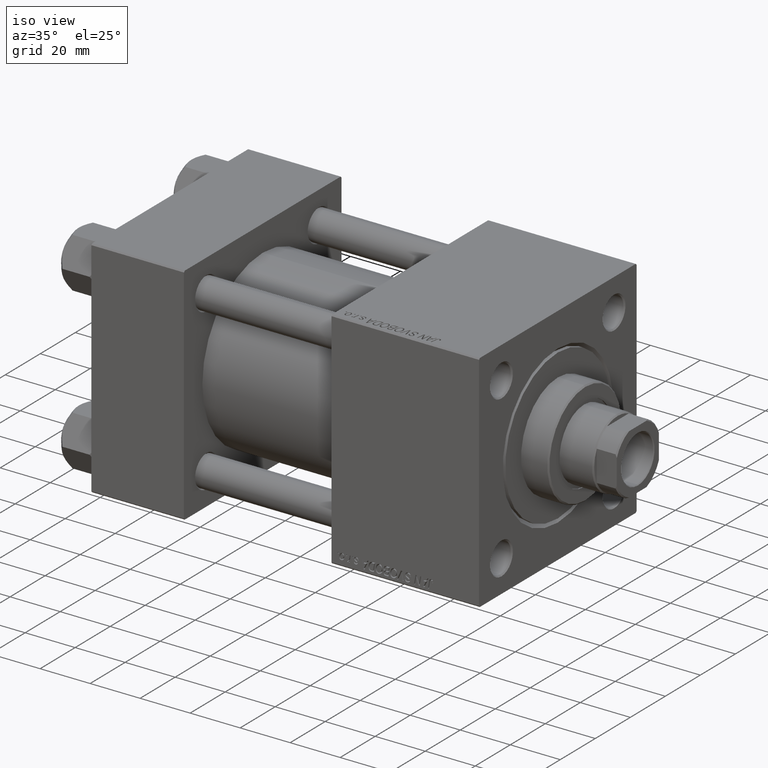
[diagram: clean part render]
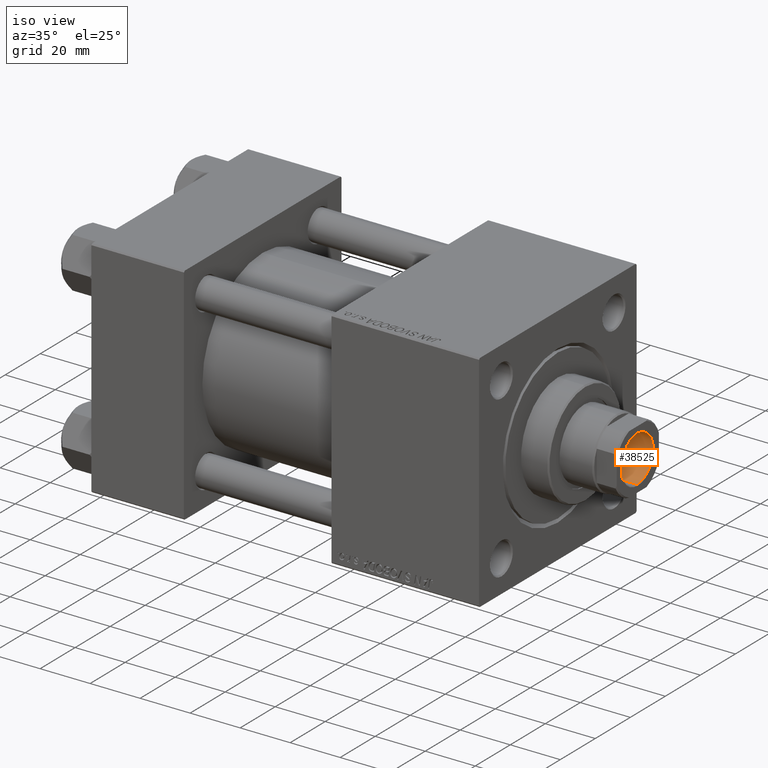
[diagram: same view with one face highlighted and labeled with its STEP entity id]
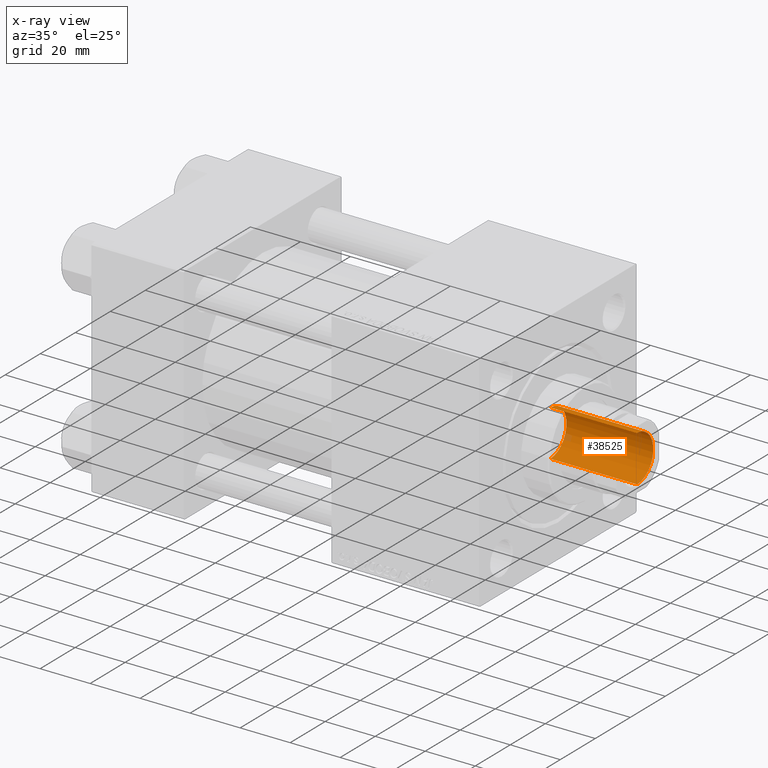
[diagram: x-ray of the same camera — body ghosted, the highlighted face saturated]
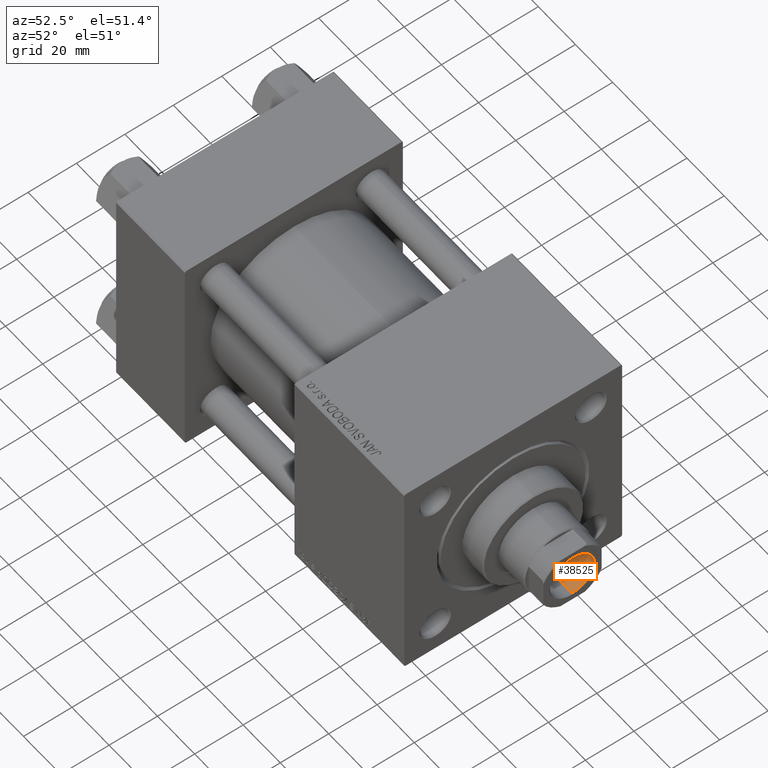
[diagram: same view with one face highlighted and labeled with its STEP entity id]
A machine part, iso view. The second image highlights one B-rep face of the part: STEP entity #38525.
The next image is the same camera in x-ray: the body ghosted, the highlighted face saturated — about 1% of this face is hidden behind the body in this view.
A second angle (auxiliary view) of the same face is appended — the face is thin or edge-on in the first view.
In plain terms, the highlighted cylindrical surface (edge-blend (fillet) strip) has radius 9.25 mm, axis along (1, 0, -0).
Its self-contained STEP definition (entity closure, byte-faithful):
#1903 = DIRECTION ( 'NONE',  ( 1.000000000000000000, 0.000000000000000000, 0.000000000000000000 ) ) ;
#4233 = CIRCLE ( 'NONE', #4355, 9.249999999999996447 ) ;
#4355 = AXIS2_PLACEMENT_3D ( 'NONE', #28843, #35483, #41276 ) ;
#4990 = DIRECTION ( 'NONE',  ( -0.000000000000000000, -0.000000000000000000, 1.000000000000000000 ) ) ;
#5170 = DIRECTION ( 'NONE',  ( -0.000000000000000000, -0.000000000000000000, 1.000000000000000000 ) ) ;
#7055 = VECTOR ( 'NONE', #4990, 1000.000000000000000 ) ;
#7157 = EDGE_CURVE ( 'NONE', #30412, #34028, #4233, .T. ) ;
#9472 = LINE ( 'NONE', #12791, #39979 ) ;
#11913 = AXIS2_PLACEMENT_3D ( 'NONE', #13345, #39773, #1903 ) ;
#12616 = EDGE_LOOP ( 'NONE', ( #24326, #13171, #29431, #42647 ) ) ;
#12791 = CARTESIAN_POINT ( 'NONE',  ( -9.249999999999996447, 1.132798289211301304E-15, 150.0000000000000000 ) ) ;
#13171 = ORIENTED_EDGE ( 'NONE', *, *, #25628, .T. ) ;
#13345 = CARTESIAN_POINT ( 'NONE',  ( 0.000000000000000000, 0.000000000000000000, 150.0000000000000000 ) ) ;
#18823 = DIRECTION ( 'NONE',  ( 1.000000000000000000, 0.000000000000000000, 0.000000000000000000 ) ) ;
#20453 = FACE_OUTER_BOUND ( 'NONE', #12616, .T. ) ;
#22390 = CARTESIAN_POINT ( 'NONE',  ( 0.000000000000000000, 0.000000000000000000, 114.9999999999999858 ) ) ;
#24326 = ORIENTED_EDGE ( 'NONE', *, *, #46726, .F. ) ;
#25568 = CARTESIAN_POINT ( 'NONE',  ( -9.249999999999996447, 1.132798289211301304E-15, 149.6999999999999886 ) ) ;
#25628 = EDGE_CURVE ( 'NONE', #39069, #30412, #9472, .T. ) ;
#27345 = LINE ( 'NONE', #46673, #7055 ) ;
#28843 = CARTESIAN_POINT ( 'NONE',  ( 0.000000000000000000, 0.000000000000000000, 149.6999999999999886 ) ) ;
#29295 = CARTESIAN_POINT ( 'NONE',  ( 9.249999999999994671, 0.000000000000000000, 114.9999999999999858 ) ) ;
#29431 = ORIENTED_EDGE ( 'NONE', *, *, #7157, .T. ) ;
#30412 = VERTEX_POINT ( 'NONE', #25568 ) ;
#34028 = VERTEX_POINT ( 'NONE', #45101 ) ;
#34892 = AXIS2_PLACEMENT_3D ( 'NONE', #22390, #49564, #18823 ) ;
#35483 = DIRECTION ( 'NONE',  ( 0.000000000000000000, 0.000000000000000000, 1.000000000000000000 ) ) ;
#36229 = VERTEX_POINT ( 'NONE', #29295 ) ;
#38525 = ADVANCED_FACE ( 'NONE', ( #20453 ), #48380, .F. ) ;
#39069 = VERTEX_POINT ( 'NONE', #44635 ) ;
#39773 = DIRECTION ( 'NONE',  ( -0.000000000000000000, -0.000000000000000000, 1.000000000000000000 ) ) ;
#39979 = VECTOR ( 'NONE', #5170, 1000.000000000000000 ) ;
#40275 = EDGE_CURVE ( 'NONE', #36229, #34028, #27345, .T. ) ;
#41276 = DIRECTION ( 'NONE',  ( 1.000000000000000000, 0.000000000000000000, 0.000000000000000000 ) ) ;
#42647 = ORIENTED_EDGE ( 'NONE', *, *, #40275, .F. ) ;
#44635 = CARTESIAN_POINT ( 'NONE',  ( -9.249999999999994671, 1.132798289211300909E-15, 114.9999999999999858 ) ) ;
#45101 = CARTESIAN_POINT ( 'NONE',  ( 9.249999999999996447, 0.000000000000000000, 149.6999999999999886 ) ) ;
#46673 = CARTESIAN_POINT ( 'NONE',  ( 9.249999999999996447, 0.000000000000000000, 150.0000000000000000 ) ) ;
#46726 = EDGE_CURVE ( 'NONE', #39069, #36229, #47881, .T. ) ;
#47881 = CIRCLE ( 'NONE', #34892, 9.249999999999994671 ) ;
#48380 = CYLINDRICAL_SURFACE ( 'NONE', #11913, 9.249999999999996447 ) ;
#49564 = DIRECTION ( 'NONE',  ( -0.000000000000000000, -0.000000000000000000, 1.000000000000000000 ) ) ;